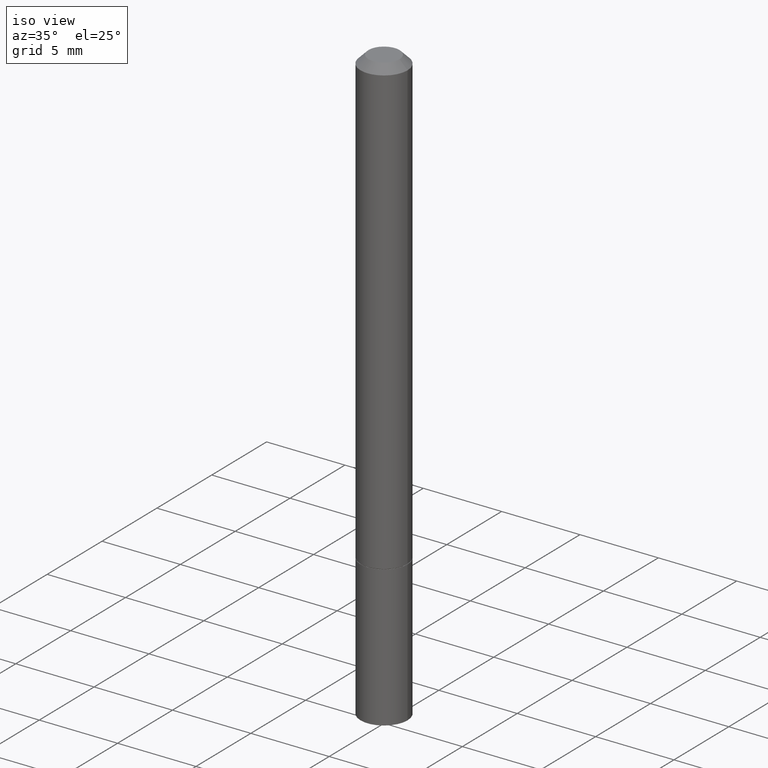
[diagram: clean part render]
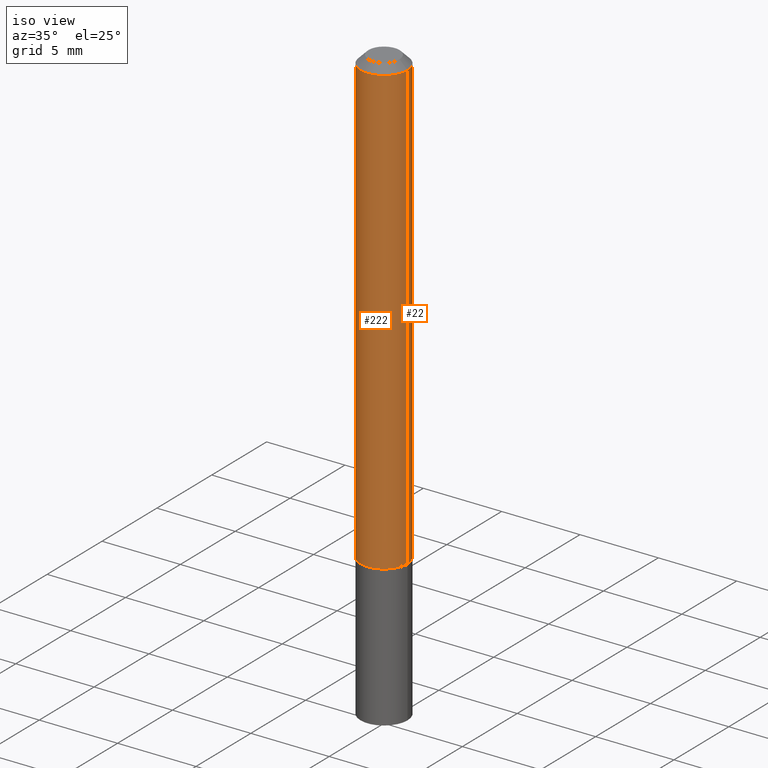
[diagram: same view with one multi-face feature highlighted, each face labeled with its STEP entity id]
A machine part, iso view. The highlighted faces form ONE feature: a constant-radius fillet chain: 2 tangent blend faces with common blend radius 1.4999 mm. The faces share edges in the B-rep.
Their STEP definitions:
[1] entity #222 (Cylinder):
#11 = CARTESIAN_POINT ( 'NONE',  ( -0.05904999999999997057, 4.195754854663389506E-16, -2.904631170795520841E-30 ) ) ;
#39 = DIRECTION ( 'NONE',  ( -2.445468806185136877E-29, 3.491481338843145188E-15, 1.000000000000000000 ) ) ;
#42 = CIRCLE ( 'NONE', #68, 0.05904999999999994975 ) ;
#46 = ORIENTED_EDGE ( 'NONE', *, *, #201, .F. ) ;
#61 = CARTESIAN_POINT ( 'NONE',  ( 2.789790814096003463E-29, -3.983081911352260315E-15, -1.140799999999999814 ) ) ;
#68 = AXIS2_PLACEMENT_3D ( 'NONE', #259, #309, #193 ) ;
#73 = VERTEX_POINT ( 'NONE', #313 ) ;
#87 = CARTESIAN_POINT ( 'NONE',  ( -0.05904999999999994975, 3.425143193405105373E-16, -0.02000000000000006287 ) ) ;
#94 = LINE ( 'NONE', #11, #238 ) ;
#103 = AXIS2_PLACEMENT_3D ( 'NONE', #239, #352, #290 ) ;
#120 = CARTESIAN_POINT ( 'NONE',  ( 0.05904999999999997057, -4.123439461173738848E-16, 2.879382386107498819E-30 ) ) ;
#127 = VERTEX_POINT ( 'NONE', #87 ) ;
#129 = VERTEX_POINT ( 'NONE', #197 ) ;
#148 = DIRECTION ( 'NONE',  ( -2.445468806185136877E-29, 3.491481338843145188E-15, 1.000000000000000000 ) ) ;
#149 = EDGE_CURVE ( 'NONE', #127, #129, #42, .T. ) ;
#156 = VERTEX_POINT ( 'NONE', #276 ) ;
#168 = VECTOR ( 'NONE', #39, 39.37007874015748143 ) ;
#171 = DIRECTION ( 'NONE',  ( -2.445468806185136597E-29, 3.491481338843145583E-15, 1.000000000000000000 ) ) ;
#182 = CIRCLE ( 'NONE', #216, 0.05904999999999999832 ) ;
#183 = ORIENTED_EDGE ( 'NONE', *, *, #333, .T. ) ;
#186 = EDGE_LOOP ( 'NONE', ( #46, #183, #253, #244 ) ) ;
#193 = DIRECTION ( 'NONE',  ( 1.000000000000000000, -6.982962677686266711E-15, 0.000000000000000000 ) ) ;
#197 = CARTESIAN_POINT ( 'NONE',  ( 0.05904999999999994975, -4.749420335452716734E-16, -0.02000000000000006287 ) ) ;
#201 = EDGE_CURVE ( 'NONE', #73, #127, #94, .T. ) ;
#207 = LINE ( 'NONE', #120, #168 ) ;
#216 = AXIS2_PLACEMENT_3D ( 'NONE', #61, #171, #314 ) ;
#219 = EDGE_CURVE ( 'NONE', #156, #129, #207, .T. ) ;
#222 = ADVANCED_FACE ( 'NONE', ( #291 ), #233, .T. ) ;
#233 = CYLINDRICAL_SURFACE ( 'NONE', #103, 0.05904999999999997057 ) ;
#238 = VECTOR ( 'NONE', #148, 39.37007874015748143 ) ;
#239 = CARTESIAN_POINT ( 'NONE',  ( 0.000000000000000000, 0.000000000000000000, 0.000000000000000000 ) ) ;
#244 = ORIENTED_EDGE ( 'NONE', *, *, #149, .F. ) ;
#253 = ORIENTED_EDGE ( 'NONE', *, *, #219, .T. ) ;
#259 = CARTESIAN_POINT ( 'NONE',  ( 4.890937612370288923E-31, -6.982962677686312563E-17, -0.02000000000000006287 ) ) ;
#276 = CARTESIAN_POINT ( 'NONE',  ( 0.05904999999999999832, -4.395425857469634446E-15, -1.140799999999999814 ) ) ;
#290 = DIRECTION ( 'NONE',  ( 1.000000000000000000, -6.982962677686267499E-15, 4.876176775795936353E-29 ) ) ;
#291 = FACE_OUTER_BOUND ( 'NONE', #186, .T. ) ;
#309 = DIRECTION ( 'NONE',  ( -2.445468806185136597E-29, 3.491481338843145583E-15, 1.000000000000000000 ) ) ;
#313 = CARTESIAN_POINT ( 'NONE',  ( -0.05904999999999999832, -1.606880283598221722E-15, -1.140799999999999814 ) ) ;
#314 = DIRECTION ( 'NONE',  ( 1.000000000000000000, -6.982962677686265133E-15, 0.000000000000000000 ) ) ;
#333 = EDGE_CURVE ( 'NONE', #73, #156, #182, .T. ) ;
#352 = DIRECTION ( 'NONE',  ( -2.445468806185136597E-29, 3.491481338843145583E-15, 1.000000000000000000 ) ) ;
[2] entity #22 (Cylinder):
#1 = DIRECTION ( 'NONE',  ( 1.000000000000000000, -6.982962677686265133E-15, 0.000000000000000000 ) ) ;
#11 = CARTESIAN_POINT ( 'NONE',  ( -0.05904999999999997057, 4.195754854663389506E-16, -2.904631170795520841E-30 ) ) ;
#12 = DIRECTION ( 'NONE',  ( -2.445468806185136597E-29, 3.491481338843145583E-15, 1.000000000000000000 ) ) ;
#22 = ADVANCED_FACE ( 'NONE', ( #170 ), #308, .T. ) ;
#28 = ORIENTED_EDGE ( 'NONE', *, *, #250, .F. ) ;
#39 = DIRECTION ( 'NONE',  ( -2.445468806185136877E-29, 3.491481338843145188E-15, 1.000000000000000000 ) ) ;
#55 = DIRECTION ( 'NONE',  ( -2.445468806185136597E-29, 3.491481338843145583E-15, 1.000000000000000000 ) ) ;
#58 = CIRCLE ( 'NONE', #332, 0.05904999999999994975 ) ;
#59 = DIRECTION ( 'NONE',  ( -2.445468806185136597E-29, 3.491481338843145583E-15, 1.000000000000000000 ) ) ;
#73 = VERTEX_POINT ( 'NONE', #313 ) ;
#77 = ORIENTED_EDGE ( 'NONE', *, *, #187, .T. ) ;
#87 = CARTESIAN_POINT ( 'NONE',  ( -0.05904999999999994975, 3.425143193405105373E-16, -0.02000000000000006287 ) ) ;
#94 = LINE ( 'NONE', #11, #238 ) ;
#95 = CIRCLE ( 'NONE', #260, 0.05904999999999999832 ) ;
#119 = DIRECTION ( 'NONE',  ( 1.000000000000000000, -6.982962677686266711E-15, 0.000000000000000000 ) ) ;
#120 = CARTESIAN_POINT ( 'NONE',  ( 0.05904999999999997057, -4.123439461173738848E-16, 2.879382386107498819E-30 ) ) ;
#127 = VERTEX_POINT ( 'NONE', #87 ) ;
#129 = VERTEX_POINT ( 'NONE', #197 ) ;
#138 = DIRECTION ( 'NONE',  ( 1.000000000000000000, -6.982962677686267499E-15, 4.876176775795936353E-29 ) ) ;
#148 = DIRECTION ( 'NONE',  ( -2.445468806185136877E-29, 3.491481338843145188E-15, 1.000000000000000000 ) ) ;
#156 = VERTEX_POINT ( 'NONE', #276 ) ;
#168 = VECTOR ( 'NONE', #39, 39.37007874015748143 ) ;
#170 = FACE_OUTER_BOUND ( 'NONE', #329, .T. ) ;
#187 = EDGE_CURVE ( 'NONE', #156, #73, #95, .T. ) ;
#197 = CARTESIAN_POINT ( 'NONE',  ( 0.05904999999999994975, -4.749420335452716734E-16, -0.02000000000000006287 ) ) ;
#201 = EDGE_CURVE ( 'NONE', #73, #127, #94, .T. ) ;
#207 = LINE ( 'NONE', #120, #168 ) ;
#219 = EDGE_CURVE ( 'NONE', #156, #129, #207, .T. ) ;
#238 = VECTOR ( 'NONE', #148, 39.37007874015748143 ) ;
#242 = ORIENTED_EDGE ( 'NONE', *, *, #219, .F. ) ;
#250 = EDGE_CURVE ( 'NONE', #129, #127, #58, .T. ) ;
#260 = AXIS2_PLACEMENT_3D ( 'NONE', #310, #59, #1 ) ;
#262 = CARTESIAN_POINT ( 'NONE',  ( 4.890937612370288923E-31, -6.982962677686312563E-17, -0.02000000000000006287 ) ) ;
#276 = CARTESIAN_POINT ( 'NONE',  ( 0.05904999999999999832, -4.395425857469634446E-15, -1.140799999999999814 ) ) ;
#308 = CYLINDRICAL_SURFACE ( 'NONE', #361, 0.05904999999999997057 ) ;
#310 = CARTESIAN_POINT ( 'NONE',  ( 2.789790814096003463E-29, -3.983081911352260315E-15, -1.140799999999999814 ) ) ;
#313 = CARTESIAN_POINT ( 'NONE',  ( -0.05904999999999999832, -1.606880283598221722E-15, -1.140799999999999814 ) ) ;
#325 = ORIENTED_EDGE ( 'NONE', *, *, #201, .T. ) ;
#329 = EDGE_LOOP ( 'NONE', ( #77, #325, #28, #242 ) ) ;
#332 = AXIS2_PLACEMENT_3D ( 'NONE', #262, #12, #119 ) ;
#341 = CARTESIAN_POINT ( 'NONE',  ( 0.000000000000000000, 0.000000000000000000, 0.000000000000000000 ) ) ;
#361 = AXIS2_PLACEMENT_3D ( 'NONE', #341, #55, #138 ) ;